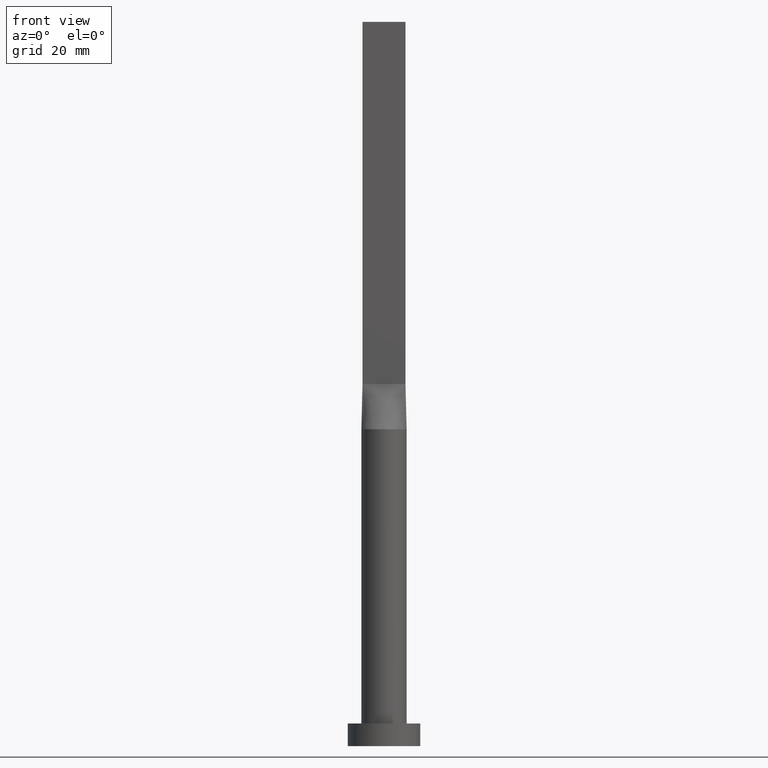
[diagram: clean part render]
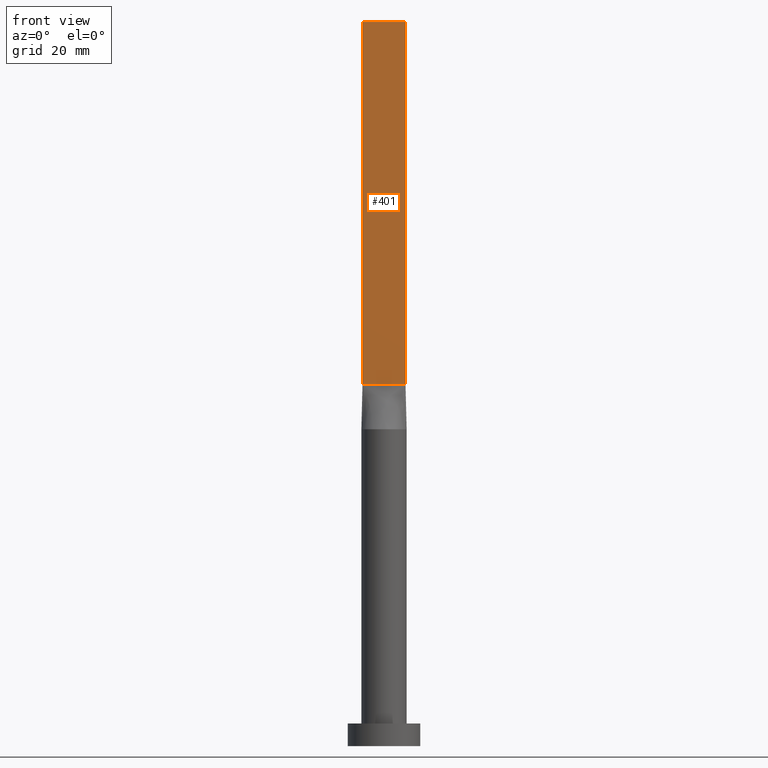
[diagram: same view with one face highlighted and labeled with its STEP entity id]
A machine part, front view. The second image highlights one B-rep face of the part: STEP entity #401.
In plain terms, the highlighted planar face has unit normal (0, 1, -0).
Its self-contained STEP definition (entity closure, byte-faithful):
#20 = DIRECTION ( 'NONE',  ( 1.000000000000000000, -6.847592668329501559E-17, 0.000000000000000000 ) ) ;
#24 = CARTESIAN_POINT ( 'NONE',  ( 4.750000000000000000, -0.7499999999999997780, 160.0000000000000000 ) ) ;
#49 = DIRECTION ( 'NONE',  ( -1.000000000000000000, 6.847592668329501559E-17, 0.000000000000000000 ) ) ;
#52 = FACE_OUTER_BOUND ( 'NONE', #73, .T. ) ;
#56 = AXIS2_PLACEMENT_3D ( 'NONE', #620, #482, #49 ) ;
#58 = CARTESIAN_POINT ( 'NONE',  ( -4.750000000000000000, -0.7499999999999991118, 80.00000000000000000 ) ) ;
#65 = VECTOR ( 'NONE', #20, 1000.000000000000000 ) ;
#72 = CARTESIAN_POINT ( 'NONE',  ( 4.750000000000000000, -0.7499999999999997780, 80.00000000000000000 ) ) ;
#73 = EDGE_LOOP ( 'NONE', ( #570, #121, #404, #510 ) ) ;
#76 = VERTEX_POINT ( 'NONE', #206 ) ;
#93 = EDGE_CURVE ( 'NONE', #76, #516, #393, .T. ) ;
#121 = ORIENTED_EDGE ( 'NONE', *, *, #579, .F. ) ;
#130 = EDGE_CURVE ( 'NONE', #516, #174, #530, .T. ) ;
#144 = VECTOR ( 'NONE', #592, 1000.000000000000000 ) ;
#174 = VERTEX_POINT ( 'NONE', #72 ) ;
#206 = CARTESIAN_POINT ( 'NONE',  ( -4.750000000000000000, -0.7499999999999991118, 160.0000000000000000 ) ) ;
#210 = CARTESIAN_POINT ( 'NONE',  ( -4.750000000000000000, -0.7499999999999991118, 160.0000000000000000 ) ) ;
#241 = VECTOR ( 'NONE', #534, 1000.000000000000000 ) ;
#303 = CARTESIAN_POINT ( 'NONE',  ( -4.750000000000000000, -0.7499999999999991118, 80.00000000000000000 ) ) ;
#305 = LINE ( 'NONE', #24, #144 ) ;
#343 = PLANE ( 'NONE',  #56 ) ;
#355 = LINE ( 'NONE', #210, #65 ) ;
#393 = LINE ( 'NONE', #577, #241 ) ;
#401 = ADVANCED_FACE ( 'NONE', ( #52 ), #343, .F. ) ;
#404 = ORIENTED_EDGE ( 'NONE', *, *, #435, .F. ) ;
#435 = EDGE_CURVE ( 'NONE', #76, #543, #355, .T. ) ;
#482 = DIRECTION ( 'NONE',  ( 6.847592668329501559E-17, 1.000000000000000000, -0.000000000000000000 ) ) ;
#510 = ORIENTED_EDGE ( 'NONE', *, *, #93, .T. ) ;
#516 = VERTEX_POINT ( 'NONE', #303 ) ;
#527 = DIRECTION ( 'NONE',  ( 1.000000000000000000, -6.847592668329501559E-17, 0.000000000000000000 ) ) ;
#530 = LINE ( 'NONE', #58, #547 ) ;
#534 = DIRECTION ( 'NONE',  ( -0.000000000000000000, -0.000000000000000000, -1.000000000000000000 ) ) ;
#537 = CARTESIAN_POINT ( 'NONE',  ( 4.750000000000000000, -0.7499999999999997780, 160.0000000000000000 ) ) ;
#543 = VERTEX_POINT ( 'NONE', #537 ) ;
#547 = VECTOR ( 'NONE', #527, 1000.000000000000000 ) ;
#570 = ORIENTED_EDGE ( 'NONE', *, *, #130, .T. ) ;
#577 = CARTESIAN_POINT ( 'NONE',  ( -4.750000000000000000, -0.7499999999999991118, 160.0000000000000000 ) ) ;
#579 = EDGE_CURVE ( 'NONE', #543, #174, #305, .T. ) ;
#592 = DIRECTION ( 'NONE',  ( -0.000000000000000000, -0.000000000000000000, -1.000000000000000000 ) ) ;
#620 = CARTESIAN_POINT ( 'NONE',  ( -4.750000000000000000, -0.7499999999999991118, 160.0000000000000000 ) ) ;